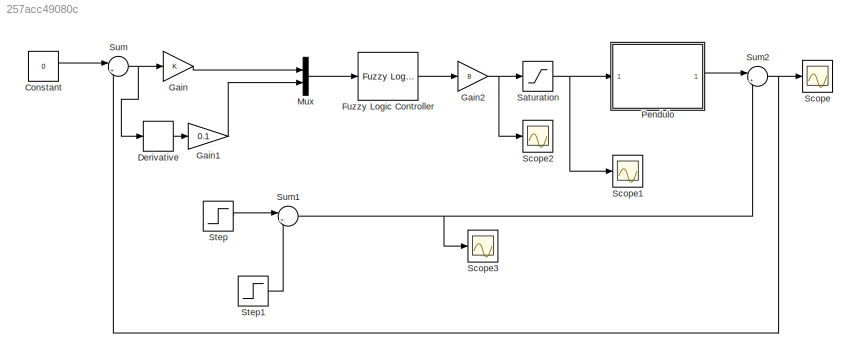
MODEL slx_257acc49080c
KIND model
CONFIG AbsTol = auto
CONFIG FixedStep = auto
CONFIG MaxStep = auto
CONFIG MinStep = auto
CONFIG RelTol = 1e-3
CONFIG SampleTimeConstraint = Unconstrained
CONFIG Solver = VariableStepAuto
CONFIG SolverMode = Auto
CONFIG SolverName = VariableStepAuto
CONFIG StartTime = 0.0
CONFIG StopTime = 10.0
BLOCK [Constant] Constant
  Value = 0
BLOCK [Derivative] Derivative
BLOCK [Reference] Fuzzy Logic Controller  REF=fuzblock/Fuzzy Logic   (lib defined in mdl_858b3b3e7478)
Controller
  Ports = [1, 1]
  SourceBlock = fuzblock/Fuzzy Logic \nController
  SourceType = FIS
BLOCK [Gain] Gain
  OutDataTypeStr = Inherit: Inherit via internal rule
  ParamDataTypeStr = Inherit: Inherit via internal rule
  SaturateOnIntegerOverflow = off
BLOCK [Gain] Gain1
  Gain = 0.1
  OutDataTypeStr = Inherit: Inherit via internal rule
  ParamDataTypeStr = Inherit: Inherit via internal rule
  SaturateOnIntegerOverflow = off
BLOCK [Gain] Gain2
  Gain = 8
  OutDataTypeStr = Inherit: Inherit via internal rule
  ParamDataTypeStr = Inherit: Inherit via internal rule
  SaturateOnIntegerOverflow = off
BLOCK [Mux] Mux
  DisplayOption = bar
  Inputs = 2
  Ports = [2, 1]
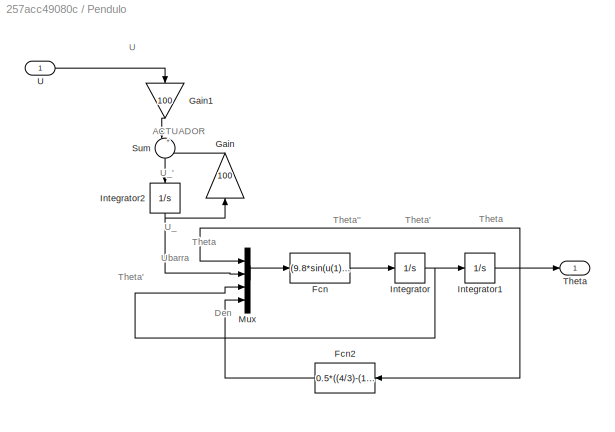
BLOCK [SubSystem] Pendulo
  Ports = [1, 1]
  RequestExecContextInheritance = off
  Variant = off
BLOCK [Fcn] Pendulo/Fcn
  Expr = (9.8*sin(u(1))+cos(u(1))*(((-u(2)-0.25*u(3)^2*sin(u(1)))))/1.5)/u(4)
BLOCK [Fcn] Pendulo/Fcn2
  Expr = 0.5*((4/3)-(1/3*(cos(u(1)))^2))
BLOCK [Gain] Pendulo/Gain
  Gain = 100
BLOCK [Gain] Pendulo/Gain1
  Gain = 100
BLOCK [Integrator] Pendulo/Integrator
  Ports = [1, 1]
BLOCK [Integrator] Pendulo/Integrator1
  InitialCondition = 0.1
  Ports = [1, 1]
BLOCK [Integrator] Pendulo/Integrator2
  InitialCondition = 0.01
  Ports = [1, 1]
BLOCK [Mux] Pendulo/Mux
  DisplayOption = bar
  Ports = [4, 1]
BLOCK [Sum] Pendulo/Sum
  IconShape = round
  Inputs = |+-
  Ports = [2, 1]
BLOCK [Outport] Pendulo/Theta
  IconDisplay = Port number
BLOCK [Inport] Pendulo/U
  IconDisplay = Port number
BLOCK [Saturate] Saturation
  InputPortMap = u0
  LowerLimit = -10
  Ports = [1, 1]
  UpperLimit = 10
BLOCK [Scope] Scope
  Ports = [1]
  ScopeSpecificationString = Simulink.scopes.TimeScopeBlockCfg('CurrentConfiguration', extmgr.ConfigurationSet(extmgr.Configuration('Core','General UI',true),extmgr.Configuration('Core','Source UI',true),extmgr.Configuration('Sources','WiredSimulink',true),extmgr.Configuration('Visuals','Time Domain',true,'SerializedDisplays',{struct('MinYLimReal','-4.63183','MaxYLimReal','42.68645','YLabelReal','','MinYLimMag','0.00000','Max...<+1380ch>
BLOCK [Scope] Scope1
  Ports = [1]
  ScopeSpecificationString = C++SS(StrPVP('SaveName','ScopeData'),StrPVP('SaveName','ScopeData1'))
BLOCK [Scope] Scope2
  Ports = [1]
  ScopeSpecificationString = C++SS(StrPVP('SaveName','ScopeData'),StrPVP('SaveName','ScopeData2'))
BLOCK [Scope] Scope3
  Ports = [1]
  ScopeSpecificationString = C++SS(StrPVP('SaveName','ScopeData'),StrPVP('SaveName','ScopeData3'))
BLOCK [Step] Step
  After = 0.2
  SampleTime = 0
  Time = 4
BLOCK [Step] Step1
  After = -0.2
  SampleTime = 0
  Time = 5
BLOCK [Sum] Sum
  IconShape = round
  InputSameDT = off
  Inputs = |+-
  OutDataTypeStr = Inherit: Inherit via internal rule
  Ports = [2, 1]
  SaturateOnIntegerOverflow = off
BLOCK [Sum] Sum1
  IconShape = round
  InputSameDT = off
  Inputs = |++
  OutDataTypeStr = Inherit: Inherit via internal rule
  Ports = [2, 1]
  SaturateOnIntegerOverflow = off
BLOCK [Sum] Sum2
  IconShape = round
  InputSameDT = off
  Inputs = |++
  OutDataTypeStr = Inherit: Inherit via internal rule
  Ports = [2, 1]
  SaturateOnIntegerOverflow = off
ANNOTATION Pendulo: ACTUADOR
ANNOTATION Pendulo: Den
ANNOTATION Pendulo: Theta
ANNOTATION Pendulo: Theta'
ANNOTATION Pendulo: Theta''
ANNOTATION Pendulo: U
ANNOTATION Pendulo: U_
ANNOTATION Pendulo: U_'
ANNOTATION Pendulo: Ubarra
LINE Constant:1 -> Sum:1
LINE Derivative:1 -> Gain1:1
LINE Fuzzy Logic Controller:1 -> Gain2:1
LINE Gain1:1 -> Mux:2
NET Gain2:1 -> Saturation:1, Scope2:1
LINE Gain:1 -> Mux:1
LINE Mux:1 -> Fuzzy Logic Controller:1
LINE Pendulo/Fcn2:1 -> Pendulo/Mux:4
LINE Pendulo/Fcn:1 -> Pendulo/Integrator:1
LINE Pendulo/Gain1:1 -> Pendulo/Sum:1
LINE Pendulo/Gain:1 -> Pendulo/Sum:2
NET Pendulo/Integrator1:1 -> Pendulo/Fcn2:1, Pendulo/Mux:1, Pendulo/Theta:1
NET Pendulo/Integrator2:1 -> Pendulo/Gain:1, Pendulo/Mux:2
NET Pendulo/Integrator:1 -> Pendulo/Integrator1:1, Pendulo/Mux:3
LINE Pendulo/Mux:1 -> Pendulo/Fcn:1
LINE Pendulo/Sum:1 -> Pendulo/Integrator2:1
LINE Pendulo/U:1 -> Pendulo/Gain1:1
LINE Pendulo:1 -> Sum2:1
NET Saturation:1 -> Pendulo:1, Scope1:1
LINE Step1:1 -> Sum1:2
LINE Step:1 -> Sum1:1
NET Sum1:1 -> Scope3:1, Sum2:2
NET Sum2:1 -> Scope:1, Sum:2
NET Sum:1 -> Derivative:1, Gain:1
note: NET lines group one-source signal fan-out (src -> all destinations, sorted); 1:1 wires keep LINE
